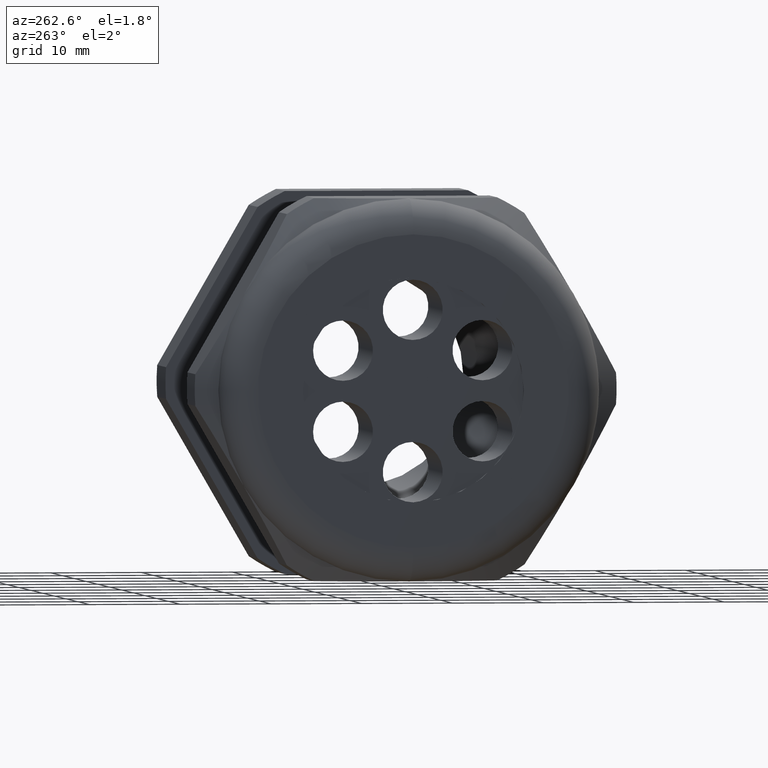
[diagram: clean part render]
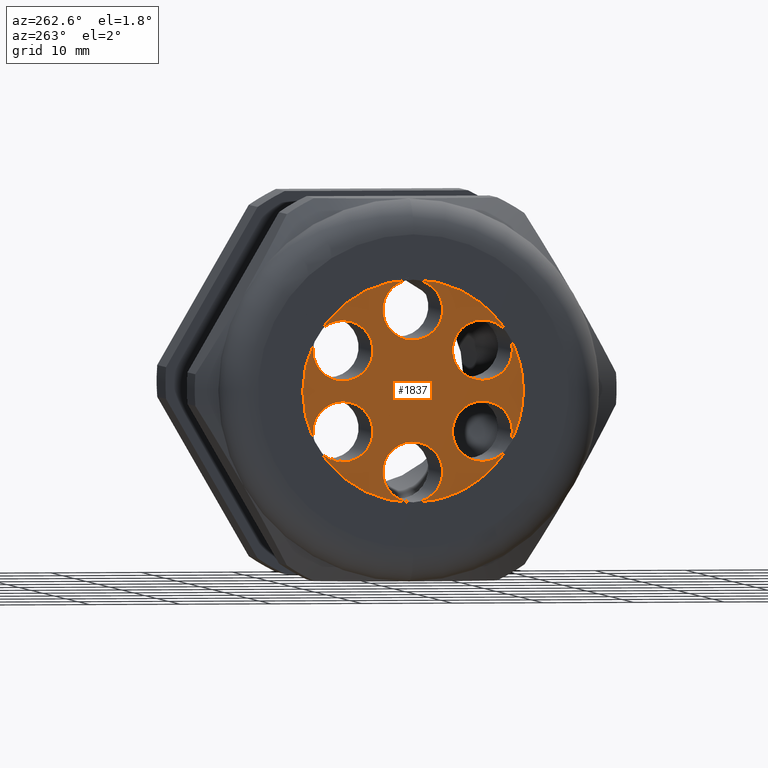
[diagram: same view with one face highlighted and labeled with its STEP entity id]
A machine part, auxiliary view. The second image highlights one B-rep face of the part: STEP entity #1837.
In plain terms, the highlighted planar face has unit normal (-1, 0, 0).
Its self-contained STEP definition (entity closure, byte-faithful):
#1657 = EDGE_CURVE ( 'NONE', #1659, #1658, #4911, .T. ) ;
#1658 = VERTEX_POINT ( 'NONE', #4906 ) ;
#1659 = VERTEX_POINT ( 'NONE', #4905 ) ;
#1701 = VERTEX_POINT ( 'NONE', #4972 ) ;
#1703 = EDGE_CURVE ( 'NONE', #1701, #1704, #4971, .T. ) ;
#1704 = VERTEX_POINT ( 'NONE', #4966 ) ;
#1716 = VERTEX_POINT ( 'NONE', #5007 ) ;
#1718 = EDGE_CURVE ( 'NONE', #1716, #1719, #5006, .T. ) ;
#1719 = VERTEX_POINT ( 'NONE', #5001 ) ;
#1725 = VERTEX_POINT ( 'NONE', #5052 ) ;
#1727 = EDGE_CURVE ( 'NONE', #1725, #1728, #5051, .T. ) ;
#1728 = VERTEX_POINT ( 'NONE', #5046 ) ;
#1751 = VERTEX_POINT ( 'NONE', #5119 ) ;
#1756 = EDGE_CURVE ( 'NONE', #1757, #1758, #5108, .T. ) ;
#1757 = VERTEX_POINT ( 'NONE', #5103 ) ;
#1758 = VERTEX_POINT ( 'NONE', #5102 ) ;
#1768 = VERTEX_POINT ( 'NONE', #5147 ) ;
#1770 = EDGE_CURVE ( 'NONE', #1768, #1771, #5146, .T. ) ;
#1771 = VERTEX_POINT ( 'NONE', #5141 ) ;
#1776 = EDGE_LOOP ( 'NONE', ( #1777, #1797 ) ) ;
#1777 = ORIENTED_EDGE ( 'NONE', *, *, #1778, .F. ) ;
#1778 = EDGE_CURVE ( 'NONE', #1814, #1751, #5129, .T. ) ;
#1779 = ORIENTED_EDGE ( 'NONE', *, *, #1780, .F. ) ;
#1780 = EDGE_CURVE ( 'NONE', #1704, #1701, #5124, .T. ) ;
#1781 = ORIENTED_EDGE ( 'NONE', *, *, #1703, .F. ) ;
#1782 = EDGE_LOOP ( 'NONE', ( #1843, #1845 ) ) ;
#1797 = ORIENTED_EDGE ( 'NONE', *, *, #1813, .F. ) ;
#1798 = EDGE_LOOP ( 'NONE', ( #1877, #1865 ) ) ;
#1813 = EDGE_CURVE ( 'NONE', #1751, #1814, #5211, .T. ) ;
#1814 = VERTEX_POINT ( 'NONE', #5206 ) ;
#1834 = EDGE_CURVE ( 'NONE', #1758, #1757, #5244, .T. ) ;
#1837 = ADVANCED_FACE ( 'NONE', ( #5240, #5239, #5238, #5237, #5236, #5235, #5234 ), #5233, .T. ) ;
#1838 = EDGE_LOOP ( 'NONE', ( #1839, #1841 ) ) ;
#1839 = ORIENTED_EDGE ( 'NONE', *, *, #1840, .F. ) ;
#1840 = EDGE_CURVE ( 'NONE', #1771, #1768, #5228, .T. ) ;
#1841 = ORIENTED_EDGE ( 'NONE', *, *, #1770, .F. ) ;
#1842 = EDGE_LOOP ( 'NONE', ( #1779, #1781 ) ) ;
#1843 = ORIENTED_EDGE ( 'NONE', *, *, #1844, .F. ) ;
#1844 = EDGE_CURVE ( 'NONE', #1728, #1725, #5223, .T. ) ;
#1845 = ORIENTED_EDGE ( 'NONE', *, *, #1727, .F. ) ;
#1846 = EDGE_LOOP ( 'NONE', ( #1847, #1849 ) ) ;
#1847 = ORIENTED_EDGE ( 'NONE', *, *, #1848, .F. ) ;
#1848 = EDGE_CURVE ( 'NONE', #1719, #1716, #5218, .T. ) ;
#1849 = ORIENTED_EDGE ( 'NONE', *, *, #1718, .F. ) ;
#1850 = EDGE_LOOP ( 'NONE', ( #1851, #1853 ) ) ;
#1851 = ORIENTED_EDGE ( 'NONE', *, *, #1852, .F. ) ;
#1852 = EDGE_CURVE ( 'NONE', #1658, #1659, #5280, .T. ) ;
#1853 = ORIENTED_EDGE ( 'NONE', *, *, #1657, .F. ) ;
#1865 = ORIENTED_EDGE ( 'NONE', *, *, #1756, .T. ) ;
#1877 = ORIENTED_EDGE ( 'NONE', *, *, #1834, .T. ) ;
#4905 = CARTESIAN_POINT ( 'NONE',  ( -1.820000000000000100, -0.3026585581145859700, -0.3047399999999992900 ) ) ;
#4906 = CARTESIAN_POINT ( 'NONE',  ( -1.820000000000000100, -0.3026585581145859700, -0.04473999999999926600 ) ) ;
#4907 = DIRECTION ( 'NONE',  ( 0.0000000000000000000, 0.8660254037844398200, 0.4999999999999980600 ) ) ;
#4908 = DIRECTION ( 'NONE',  ( -1.000000000000000000, 0.0000000000000000000, 0.0000000000000000000 ) ) ;
#4909 = CARTESIAN_POINT ( 'NONE',  ( -1.820000000000000100, -0.3026585581145859700, -0.1747399999999992800 ) ) ;
#4910 = AXIS2_PLACEMENT_3D ( 'NONE', #4909, #4908, #4907 ) ;
#4911 = CIRCLE ( 'NONE', #4910, 0.1300000000000000000 ) ;
#4966 = CARTESIAN_POINT ( 'NONE',  ( -1.820000000000000100, 0.3026585581145871400, 0.3047399999999971800 ) ) ;
#4967 = DIRECTION ( 'NONE',  ( 0.0000000000000000000, -0.8660254037844432600, -0.4999999999999919000 ) ) ;
#4968 = DIRECTION ( 'NONE',  ( -1.000000000000000000, 0.0000000000000000000, 0.0000000000000000000 ) ) ;
#4969 = CARTESIAN_POINT ( 'NONE',  ( -1.820000000000000100, 0.3026585581145871400, 0.1747399999999971800 ) ) ;
#4970 = AXIS2_PLACEMENT_3D ( 'NONE', #4969, #4968, #4967 ) ;
#4971 = CIRCLE ( 'NONE', #4970, 0.1300000000000000000 ) ;
#4972 = CARTESIAN_POINT ( 'NONE',  ( -1.820000000000000100, 0.3026585581145871400, 0.04473999999999715000 ) ) ;
#5001 = CARTESIAN_POINT ( 'NONE',  ( -1.820000000000000100, -0.3026585581145848100, 0.3047400000000014000 ) ) ;
#5002 = DIRECTION ( 'NONE',  ( 0.0000000000000000000, 0.8660254037844361500, -0.5000000000000040000 ) ) ;
#5003 = DIRECTION ( 'NONE',  ( -1.000000000000000000, 0.0000000000000000000, 0.0000000000000000000 ) ) ;
#5004 = CARTESIAN_POINT ( 'NONE',  ( -1.820000000000000100, -0.3026585581145848100, 0.1747400000000013900 ) ) ;
#5005 = AXIS2_PLACEMENT_3D ( 'NONE', #5004, #5003, #5002 ) ;
#5006 = CIRCLE ( 'NONE', #5005, 0.1300000000000000300 ) ;
#5007 = CARTESIAN_POINT ( 'NONE',  ( -1.820000000000000100, -0.3026585581145848100, 0.04474000000000140400 ) ) ;
#5046 = CARTESIAN_POINT ( 'NONE',  ( -1.820000000000000100, 2.440407210081013500E-015, 0.4794799999999999100 ) ) ;
#5047 = DIRECTION ( 'NONE',  ( 0.0000000000000000000, -6.982966722218764900E-015, -1.000000000000000000 ) ) ;
#5048 = DIRECTION ( 'NONE',  ( -1.000000000000000000, 0.0000000000000000000, 0.0000000000000000000 ) ) ;
#5049 = CARTESIAN_POINT ( 'NONE',  ( -1.820000000000000100, 2.440407210081013500E-015, 0.3494799999999999000 ) ) ;
#5050 = AXIS2_PLACEMENT_3D ( 'NONE', #5049, #5048, #5047 ) ;
#5051 = CIRCLE ( 'NONE', #5050, 0.1299999999999999800 ) ;
#5052 = CARTESIAN_POINT ( 'NONE',  ( -1.820000000000000100, 2.456327618469928800E-015, 0.2194799999999999300 ) ) ;
#5102 = CARTESIAN_POINT ( 'NONE',  ( -1.820000000000000100, 0.0000000000000000000, 0.4799999999999999300 ) ) ;
#5103 = CARTESIAN_POINT ( 'NONE',  ( -1.820000000000000100, 5.878304635907294700E-017, -0.4799999999999999300 ) ) ;
#5104 = DIRECTION ( 'NONE',  ( 0.0000000000000000000, 0.0000000000000000000, 1.000000000000000000 ) ) ;
#5105 = DIRECTION ( 'NONE',  ( -1.000000000000000000, 0.0000000000000000000, 0.0000000000000000000 ) ) ;
#5106 = CARTESIAN_POINT ( 'NONE',  ( -1.820000000000000100, 0.0000000000000000000, 0.0000000000000000000 ) ) ;
#5107 = AXIS2_PLACEMENT_3D ( 'NONE', #5106, #5105, #5104 ) ;
#5108 = CIRCLE ( 'NONE', #5107, 0.4799999999999999300 ) ;
#5119 = CARTESIAN_POINT ( 'NONE',  ( -1.820000000000000100, 1.592040838891559300E-017, -0.4794799999999999100 ) ) ;
#5120 = DIRECTION ( 'NONE',  ( 0.0000000000000000000, -0.8660254037844432600, -0.4999999999999919000 ) ) ;
#5121 = DIRECTION ( 'NONE',  ( -1.000000000000000000, 0.0000000000000000000, 0.0000000000000000000 ) ) ;
#5122 = CARTESIAN_POINT ( 'NONE',  ( -1.820000000000000100, 0.3026585581145871400, 0.1747399999999971800 ) ) ;
#5123 = AXIS2_PLACEMENT_3D ( 'NONE', #5122, #5121, #5120 ) ;
#5124 = CIRCLE ( 'NONE', #5123, 0.1300000000000000000 ) ;
#5126 = DIRECTION ( 'NONE',  ( 0.0000000000000000000, 0.0000000000000000000, 1.000000000000000000 ) ) ;
#5127 = DIRECTION ( 'NONE',  ( -1.000000000000000000, 0.0000000000000000000, 0.0000000000000000000 ) ) ;
#5128 = AXIS2_PLACEMENT_3D ( 'NONE', #5135, #5127, #5126 ) ;
#5129 = CIRCLE ( 'NONE', #5128, 0.1299999999999999800 ) ;
#5135 = CARTESIAN_POINT ( 'NONE',  ( -1.820000000000000100, 0.0000000000000000000, -0.3494799999999999000 ) ) ;
#5141 = CARTESIAN_POINT ( 'NONE',  ( -1.820000000000000100, 0.3026585581145835300, -0.04474000000000348500 ) ) ;
#5142 = DIRECTION ( 'NONE',  ( 0.0000000000000000000, -0.8660254037844327100, 0.5000000000000101000 ) ) ;
#5143 = DIRECTION ( 'NONE',  ( -1.000000000000000000, 0.0000000000000000000, 0.0000000000000000000 ) ) ;
#5144 = CARTESIAN_POINT ( 'NONE',  ( -1.820000000000000100, 0.3026585581145835300, -0.1747400000000034800 ) ) ;
#5145 = AXIS2_PLACEMENT_3D ( 'NONE', #5144, #5143, #5142 ) ;
#5146 = CIRCLE ( 'NONE', #5145, 0.1300000000000000000 ) ;
#5147 = CARTESIAN_POINT ( 'NONE',  ( -1.820000000000000100, 0.3026585581145835300, -0.3047400000000035100 ) ) ;
#5206 = CARTESIAN_POINT ( 'NONE',  ( -1.820000000000000100, 0.0000000000000000000, -0.2194799999999999500 ) ) ;
#5207 = DIRECTION ( 'NONE',  ( 0.0000000000000000000, 0.0000000000000000000, 1.000000000000000000 ) ) ;
#5208 = DIRECTION ( 'NONE',  ( -1.000000000000000000, 0.0000000000000000000, 0.0000000000000000000 ) ) ;
#5209 = CARTESIAN_POINT ( 'NONE',  ( -1.820000000000000100, 0.0000000000000000000, -0.3494799999999999000 ) ) ;
#5210 = AXIS2_PLACEMENT_3D ( 'NONE', #5209, #5208, #5207 ) ;
#5211 = CIRCLE ( 'NONE', #5210, 0.1299999999999999800 ) ;
#5218 = CIRCLE ( 'NONE', #5284, 0.1300000000000000300 ) ;
#5219 = DIRECTION ( 'NONE',  ( 0.0000000000000000000, -6.982966722218764900E-015, -1.000000000000000000 ) ) ;
#5220 = DIRECTION ( 'NONE',  ( -1.000000000000000000, 0.0000000000000000000, 0.0000000000000000000 ) ) ;
#5221 = CARTESIAN_POINT ( 'NONE',  ( -1.820000000000000100, 2.440407210081013500E-015, 0.3494799999999999000 ) ) ;
#5222 = AXIS2_PLACEMENT_3D ( 'NONE', #5221, #5220, #5219 ) ;
#5223 = CIRCLE ( 'NONE', #5222, 0.1299999999999999800 ) ;
#5224 = DIRECTION ( 'NONE',  ( 0.0000000000000000000, -0.8660254037844327100, 0.5000000000000101000 ) ) ;
#5225 = DIRECTION ( 'NONE',  ( -1.000000000000000000, 0.0000000000000000000, 0.0000000000000000000 ) ) ;
#5226 = CARTESIAN_POINT ( 'NONE',  ( -1.820000000000000100, 0.3026585581145835300, -0.1747400000000034800 ) ) ;
#5227 = AXIS2_PLACEMENT_3D ( 'NONE', #5226, #5225, #5224 ) ;
#5228 = CIRCLE ( 'NONE', #5227, 0.1300000000000000000 ) ;
#5229 = DIRECTION ( 'NONE',  ( 0.0000000000000000000, 0.0000000000000000000, 1.000000000000000000 ) ) ;
#5230 = DIRECTION ( 'NONE',  ( -1.000000000000000000, 0.0000000000000000000, 0.0000000000000000000 ) ) ;
#5231 = CARTESIAN_POINT ( 'NONE',  ( -1.820000000000000100, 0.0000000000000000000, 0.0000000000000000000 ) ) ;
#5232 = AXIS2_PLACEMENT_3D ( 'NONE', #5231, #5230, #5229 ) ;
#5233 = PLANE ( 'NONE',  #5232 ) ;
#5234 = FACE_OUTER_BOUND ( 'NONE', #1798, .T. ) ;
#5235 = FACE_BOUND ( 'NONE', #1776, .T. ) ;
#5236 = FACE_BOUND ( 'NONE', #1850, .T. ) ;
#5237 = FACE_BOUND ( 'NONE', #1846, .T. ) ;
#5238 = FACE_BOUND ( 'NONE', #1782, .T. ) ;
#5239 = FACE_BOUND ( 'NONE', #1842, .T. ) ;
#5240 = FACE_BOUND ( 'NONE', #1838, .T. ) ;
#5241 = DIRECTION ( 'NONE',  ( 0.0000000000000000000, 0.0000000000000000000, 1.000000000000000000 ) ) ;
#5242 = DIRECTION ( 'NONE',  ( -1.000000000000000000, 0.0000000000000000000, 0.0000000000000000000 ) ) ;
#5243 = AXIS2_PLACEMENT_3D ( 'NONE', #5249, #5242, #5241 ) ;
#5244 = CIRCLE ( 'NONE', #5243, 0.4799999999999999300 ) ;
#5249 = CARTESIAN_POINT ( 'NONE',  ( -1.820000000000000100, 0.0000000000000000000, 0.0000000000000000000 ) ) ;
#5276 = DIRECTION ( 'NONE',  ( 0.0000000000000000000, 0.8660254037844398200, 0.4999999999999980600 ) ) ;
#5277 = DIRECTION ( 'NONE',  ( -1.000000000000000000, 0.0000000000000000000, 0.0000000000000000000 ) ) ;
#5278 = CARTESIAN_POINT ( 'NONE',  ( -1.820000000000000100, -0.3026585581145859700, -0.1747399999999992800 ) ) ;
#5279 = AXIS2_PLACEMENT_3D ( 'NONE', #5278, #5277, #5276 ) ;
#5280 = CIRCLE ( 'NONE', #5279, 0.1300000000000000000 ) ;
#5281 = DIRECTION ( 'NONE',  ( 0.0000000000000000000, 0.8660254037844361500, -0.5000000000000040000 ) ) ;
#5282 = DIRECTION ( 'NONE',  ( -1.000000000000000000, 0.0000000000000000000, 0.0000000000000000000 ) ) ;
#5283 = CARTESIAN_POINT ( 'NONE',  ( -1.820000000000000100, -0.3026585581145848100, 0.1747400000000013900 ) ) ;
#5284 = AXIS2_PLACEMENT_3D ( 'NONE', #5283, #5282, #5281 ) ;